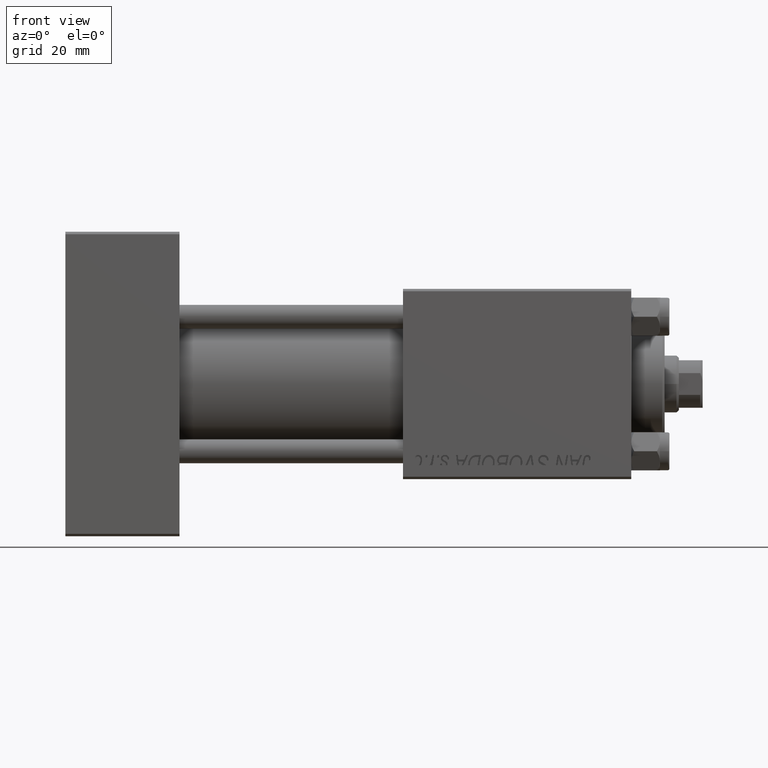
[diagram: clean part render]
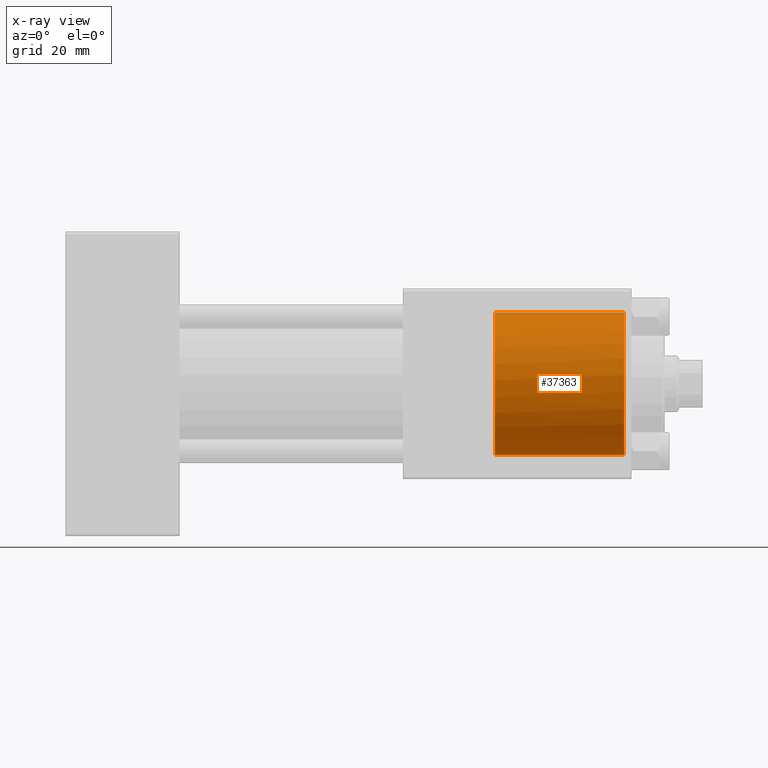
[diagram: x-ray — body ghosted, one internal face saturated and labeled with its STEP entity id]
A machine part, front view, then the same camera in x-ray: the body is ghosted and one INTERNAL B-rep face — a face not visible from any outside direction — is saturated and labeled: STEP entity #37363.
In plain terms, the highlighted cylindrical surface (partial cylindrical patch) has radius 15 mm, axis along (1, 0, 0).
Its self-contained STEP definition (entity closure, byte-faithful):
#887 = CARTESIAN_POINT ( 'NONE',  ( 90.30000000000001137, 0.000000000000000000, -15.00000000000000000 ) ) ;
#1525 = CARTESIAN_POINT ( 'NONE',  ( 117.5000000000000142, 0.000000000000000000, 0.000000000000000000 ) ) ;
#2297 = AXIS2_PLACEMENT_3D ( 'NONE', #16740, #47536, #43751 ) ;
#2576 = VERTEX_POINT ( 'NONE', #887 ) ;
#4698 = CIRCLE ( 'NONE', #2297, 15.00000000000000000 ) ;
#6210 = EDGE_CURVE ( 'NONE', #14323, #24143, #15912, .T. ) ;
#7345 = DIRECTION ( 'NONE',  ( 1.000000000000000000, -0.000000000000000000, -0.000000000000000000 ) ) ;
#8186 = CARTESIAN_POINT ( 'NONE',  ( 90.30000000000001137, -1.899052395280420136, 14.87930105885285670 ) ) ;
#9497 = CARTESIAN_POINT ( 'NONE',  ( 117.5000000000000142, 1.836970198721029589E-15, 15.00000000000000000 ) ) ;
#9791 = CARTESIAN_POINT ( 'NONE',  ( 90.48627106246553353, -1.281108574220369167, 14.95816952780117504 ) ) ;
#10745 = EDGE_CURVE ( 'NONE', #24143, #48027, #15399, .T. ) ;
#12987 = DIRECTION ( 'NONE',  ( 1.000000000000000000, -0.000000000000000000, -0.000000000000000000 ) ) ;
#13057 = CARTESIAN_POINT ( 'NONE',  ( 90.58000000000154728, -0.6482402319151109316, 15.00000000000000000 ) ) ;
#13138 = DIRECTION ( 'NONE',  ( 1.000000000000000000, 0.000000000000000000, 0.000000000000000000 ) ) ;
#13944 = CARTESIAN_POINT ( 'NONE',  ( 90.58000000000154728, 1.837042777381032933E-15, 15.00000000000000000 ) ) ;
#14323 = VERTEX_POINT ( 'NONE', #13944 ) ;
#15399 = CIRCLE ( 'NONE', #43605, 15.00000000000000000 ) ;
#15912 = LINE ( 'NONE', #23965, #37020 ) ;
#16167 = DIRECTION ( 'NONE',  ( 1.000000000000000000, -0.000000000000000000, -0.000000000000000000 ) ) ;
#16740 = CARTESIAN_POINT ( 'NONE',  ( 90.30000000000001137, 0.000000000000000000, 0.000000000000000000 ) ) ;
#17096 = CARTESIAN_POINT ( 'NONE',  ( 90.58000000000154728, 1.837042777381032933E-15, 15.00000000000000000 ) ) ;
#18444 = VECTOR ( 'NONE', #7345, 1000.000000000000000 ) ;
#23484 = VERTEX_POINT ( 'NONE', #8186 ) ;
#23834 = FACE_OUTER_BOUND ( 'NONE', #30745, .T. ) ;
#23965 = CARTESIAN_POINT ( 'NONE',  ( 90.30000000000001137, 1.836970198721029589E-15, 15.00000000000000000 ) ) ;
#24143 = VERTEX_POINT ( 'NONE', #9497 ) ;
#25151 = CARTESIAN_POINT ( 'NONE',  ( 90.30000000000001137, -1.899052395280420136, 14.87930105885285670 ) ) ;
#26889 = EDGE_CURVE ( 'NONE', #23484, #14323, #27216, .T. ) ;
#27216 = B_SPLINE_CURVE_WITH_KNOTS ( 'NONE', 3,
 ( #25151, #9791, #13057, #17096 ),
 .UNSPECIFIED., .F., .F.,
 ( 4, 4 ),
 ( 0.000000000000000000, 0.001923267627926022365 ),
 .UNSPECIFIED. ) ;
#28355 = EDGE_CURVE ( 'NONE', #2576, #48027, #33577, .T. ) ;
#28512 = DIRECTION ( 'NONE',  ( 0.000000000000000000, 0.000000000000000000, 1.000000000000000000 ) ) ;
#30745 = EDGE_LOOP ( 'NONE', ( #43415, #44439, #30755, #46411, #46884 ) ) ;
#30755 = ORIENTED_EDGE ( 'NONE', *, *, #10745, .T. ) ;
#31897 = CARTESIAN_POINT ( 'NONE',  ( 90.30000000000001137, 0.000000000000000000, 0.000000000000000000 ) ) ;
#32144 = CYLINDRICAL_SURFACE ( 'NONE', #44463, 15.00000000000000000 ) ;
#33577 = LINE ( 'NONE', #45931, #18444 ) ;
#36178 = CARTESIAN_POINT ( 'NONE',  ( 117.5000000000000142, 0.000000000000000000, -15.00000000000000000 ) ) ;
#37020 = VECTOR ( 'NONE', #16167, 1000.000000000000000 ) ;
#37363 = ADVANCED_FACE ( 'NONE', ( #23834 ), #32144, .F. ) ;
#42792 = DIRECTION ( 'NONE',  ( 0.000000000000000000, 0.000000000000000000, -1.000000000000000000 ) ) ;
#43415 = ORIENTED_EDGE ( 'NONE', *, *, #26889, .T. ) ;
#43605 = AXIS2_PLACEMENT_3D ( 'NONE', #1525, #13138, #28512 ) ;
#43751 = DIRECTION ( 'NONE',  ( 0.000000000000000000, 0.000000000000000000, -1.000000000000000000 ) ) ;
#44439 = ORIENTED_EDGE ( 'NONE', *, *, #6210, .T. ) ;
#44463 = AXIS2_PLACEMENT_3D ( 'NONE', #31897, #12987, #42792 ) ;
#45931 = CARTESIAN_POINT ( 'NONE',  ( 90.30000000000001137, 0.000000000000000000, -15.00000000000000000 ) ) ;
#46411 = ORIENTED_EDGE ( 'NONE', *, *, #28355, .F. ) ;
#46884 = ORIENTED_EDGE ( 'NONE', *, *, #48828, .F. ) ;
#47536 = DIRECTION ( 'NONE',  ( 1.000000000000000000, 0.000000000000000000, 0.000000000000000000 ) ) ;
#48027 = VERTEX_POINT ( 'NONE', #36178 ) ;
#48828 = EDGE_CURVE ( 'NONE', #23484, #2576, #4698, .T. ) ;